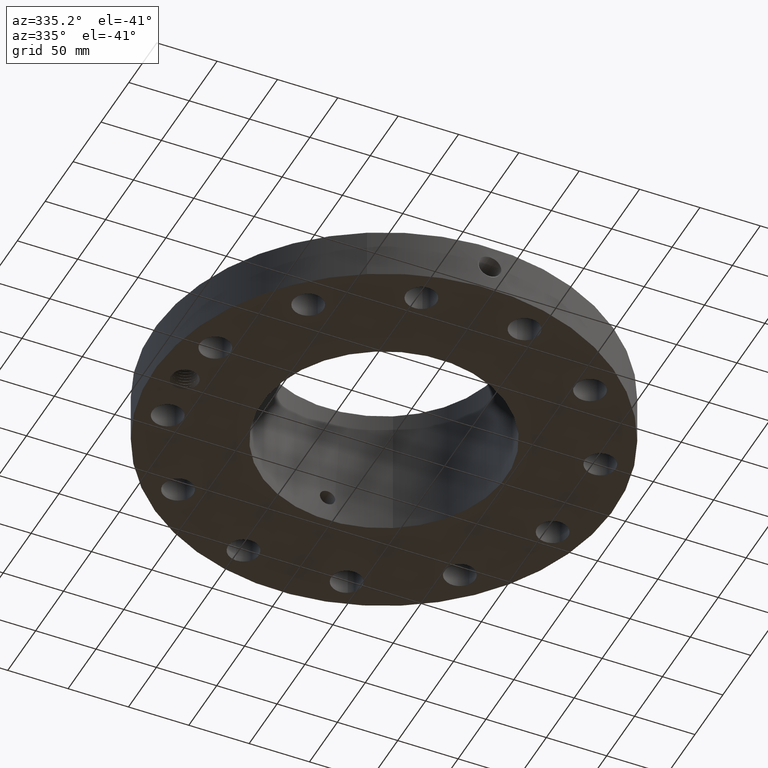
[diagram: clean part render]
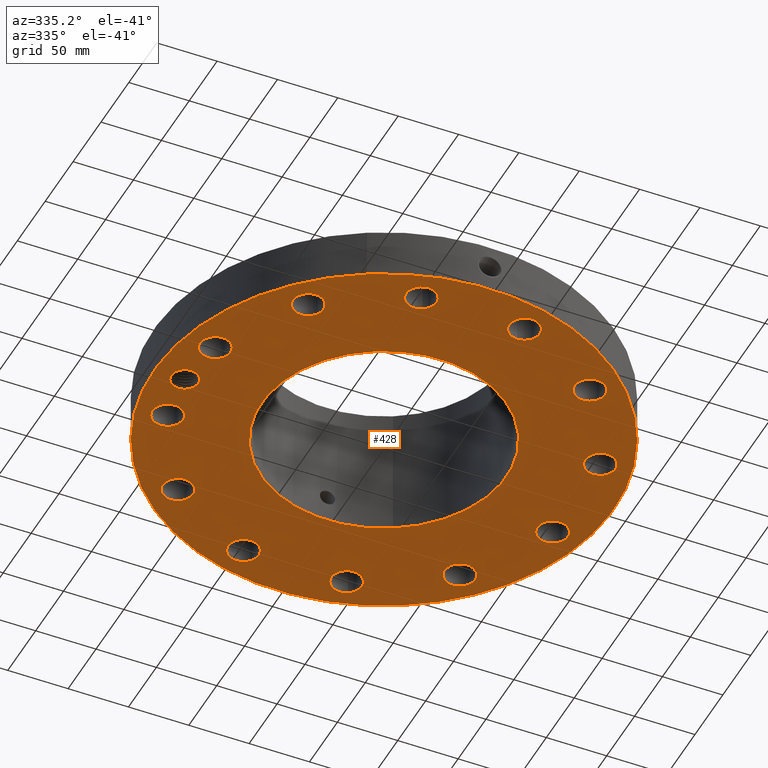
[diagram: same view with one face highlighted and labeled with its STEP entity id]
A machine part, auxiliary view. The second image highlights one B-rep face of the part: STEP entity #428.
In plain terms, the highlighted planar face has unit normal (0, 0, -1).
Its self-contained STEP definition (entity closure, byte-faithful):
#42=AXIS2_PLACEMENT_3D('Circle Axis2P3D',#40,#41,$) ;
#165=AXIS2_PLACEMENT_3D('Plane Axis2P3D',#162,#163,#164) ;
#169=AXIS2_PLACEMENT_3D('Circle Axis2P3D',#167,#168,$) ;
#178=AXIS2_PLACEMENT_3D('Circle Axis2P3D',#176,#177,$) ;
#187=AXIS2_PLACEMENT_3D('Circle Axis2P3D',#185,#186,$) ;
#196=AXIS2_PLACEMENT_3D('Circle Axis2P3D',#194,#195,$) ;
#205=AXIS2_PLACEMENT_3D('Circle Axis2P3D',#203,#204,$) ;
#214=AXIS2_PLACEMENT_3D('Circle Axis2P3D',#212,#213,$) ;
#223=AXIS2_PLACEMENT_3D('Circle Axis2P3D',#221,#222,$) ;
#232=AXIS2_PLACEMENT_3D('Circle Axis2P3D',#230,#231,$) ;
#241=AXIS2_PLACEMENT_3D('Circle Axis2P3D',#239,#240,$) ;
#250=AXIS2_PLACEMENT_3D('Circle Axis2P3D',#248,#249,$) ;
#259=AXIS2_PLACEMENT_3D('Circle Axis2P3D',#257,#258,$) ;
#268=AXIS2_PLACEMENT_3D('Circle Axis2P3D',#266,#267,$) ;
#277=AXIS2_PLACEMENT_3D('Circle Axis2P3D',#275,#276,$) ;
#286=AXIS2_PLACEMENT_3D('Circle Axis2P3D',#284,#285,$) ;
#295=AXIS2_PLACEMENT_3D('Circle Axis2P3D',#293,#294,$) ;
#304=AXIS2_PLACEMENT_3D('Circle Axis2P3D',#302,#303,$) ;
#313=AXIS2_PLACEMENT_3D('Circle Axis2P3D',#311,#312,$) ;
#322=AXIS2_PLACEMENT_3D('Circle Axis2P3D',#320,#321,$) ;
#331=AXIS2_PLACEMENT_3D('Circle Axis2P3D',#329,#330,$) ;
#340=AXIS2_PLACEMENT_3D('Circle Axis2P3D',#338,#339,$) ;
#349=AXIS2_PLACEMENT_3D('Circle Axis2P3D',#347,#348,$) ;
#358=AXIS2_PLACEMENT_3D('Circle Axis2P3D',#356,#357,$) ;
#367=AXIS2_PLACEMENT_3D('Circle Axis2P3D',#365,#366,$) ;
#376=AXIS2_PLACEMENT_3D('Circle Axis2P3D',#374,#375,$) ;
#385=AXIS2_PLACEMENT_3D('Circle Axis2P3D',#383,#384,$) ;
#394=AXIS2_PLACEMENT_3D('Circle Axis2P3D',#392,#393,$) ;
#403=AXIS2_PLACEMENT_3D('Circle Axis2P3D',#401,#402,$) ;
#412=AXIS2_PLACEMENT_3D('Circle Axis2P3D',#410,#411,$) ;
#421=AXIS2_PLACEMENT_3D('Circle Axis2P3D',#419,#420,$) ;
#40=CARTESIAN_POINT('Axis2P3D Location',(0.,0.,0.0600000000002)) ;
#44=CARTESIAN_POINT('Vertex',(-3.59569153955,-6.5818692142,0.0600000000002)) ;
#46=CARTESIAN_POINT('Vertex',(3.59569153955,6.5818692142,0.0600000000002)) ;
#162=CARTESIAN_POINT('Axis2P3D Location',(0.,3.99050000002,0.0600000000002)) ;
#167=CARTESIAN_POINT('Axis2P3D Location',(0.,0.,0.0600000000002)) ;
#176=CARTESIAN_POINT('Axis2P3D Location',(-6.50000000003,2.23792987641E-015,0.0600000000002)) ;
#180=CARTESIAN_POINT('Vertex',(-6.11139327788,-0.212296819878,0.0600000000002)) ;
#182=CARTESIAN_POINT('Vertex',(-6.88860672217,0.212296819878,0.0600000000002)) ;
#185=CARTESIAN_POINT('Axis2P3D Location',(-6.50000000003,2.23792987641E-015,0.0600000000002)) ;
#194=CARTESIAN_POINT('Axis2P3D Location',(6.2785178709,-1.68232379317,0.0600000000002)) ;
#198=CARTESIAN_POINT('Vertex',(6.71730915185,-1.92203656248,0.0600000000002)) ;
#200=CARTESIAN_POINT('Vertex',(5.83972658996,-1.44261102387,0.0600000000002)) ;
#203=CARTESIAN_POINT('Axis2P3D Location',(6.2785178709,-1.68232379317,0.0600000000002)) ;
#212=CARTESIAN_POINT('Axis2P3D Location',(0.,0.,0.0600000000002)) ;
#216=CARTESIAN_POINT('Vertex',(1.91314761181,3.50199321324,0.0600000000002)) ;
#218=CARTESIAN_POINT('Vertex',(-1.91314761181,-3.50199321324,0.0600000000002)) ;
#221=CARTESIAN_POINT('Axis2P3D Location',(0.,0.,0.0600000000002)) ;
#230=CARTESIAN_POINT('Axis2P3D Location',(4.59619407773,-4.59619407773,0.0600000000002)) ;
#234=CARTESIAN_POINT('Vertex',(4.33604606612,-4.16920108943,0.0600000000002)) ;
#236=CARTESIAN_POINT('Vertex',(4.85634208934,-5.02318706603,0.0600000000002)) ;
#239=CARTESIAN_POINT('Axis2P3D Location',(4.59619407773,-4.59619407773,0.0600000000002)) ;
#248=CARTESIAN_POINT('Axis2P3D Location',(1.68232379317,-6.2785178709,0.0600000000002)) ;
#252=CARTESIAN_POINT('Vertex',(1.67052550053,-5.77865708999,0.0600000000002)) ;
#254=CARTESIAN_POINT('Vertex',(1.69412208582,-6.77837865181,0.0600000000002)) ;
#257=CARTESIAN_POINT('Axis2P3D Location',(1.68232379317,-6.2785178709,0.0600000000002)) ;
#266=CARTESIAN_POINT('Axis2P3D Location',(-1.68232379317,-6.2785178709,0.0600000000002)) ;
#270=CARTESIAN_POINT('Vertex',(-1.44261102387,-5.83972658996,0.0600000000002)) ;
#272=CARTESIAN_POINT('Vertex',(-1.92203656248,-6.71730915185,0.0600000000002)) ;
#275=CARTESIAN_POINT('Axis2P3D Location',(-1.68232379317,-6.2785178709,0.0600000000002)) ;
#284=CARTESIAN_POINT('Axis2P3D Location',(-4.59619407773,-4.59619407773,0.0600000000002)) ;
#288=CARTESIAN_POINT('Vertex',(-4.16920108943,-4.33604606612,0.0600000000002)) ;
#290=CARTESIAN_POINT('Vertex',(-5.02318706603,-4.85634208934,0.0600000000002)) ;
#293=CARTESIAN_POINT('Axis2P3D Location',(-4.59619407773,-4.59619407773,0.0600000000002)) ;
#302=CARTESIAN_POINT('Axis2P3D Location',(-6.2785178709,-1.68232379317,0.0600000000002)) ;
#306=CARTESIAN_POINT('Vertex',(-5.77865708999,-1.67052550053,0.0600000000002)) ;
#308=CARTESIAN_POINT('Vertex',(-6.77837865181,-1.69412208582,0.0600000000002)) ;
#311=CARTESIAN_POINT('Axis2P3D Location',(-6.2785178709,-1.68232379317,0.0600000000002)) ;
#320=CARTESIAN_POINT('Axis2P3D Location',(-6.2785178709,1.68232379317,0.0600000000002)) ;
#324=CARTESIAN_POINT('Vertex',(-5.83972658996,1.44261102387,0.0600000000002)) ;
#326=CARTESIAN_POINT('Vertex',(-6.71730915185,1.92203656248,0.0600000000002)) ;
#329=CARTESIAN_POINT('Axis2P3D Location',(-6.2785178709,1.68232379317,0.0600000000002)) ;
#338=CARTESIAN_POINT('Axis2P3D Location',(-4.59619407773,4.59619407773,0.0600000000002)) ;
#342=CARTESIAN_POINT('Vertex',(-4.33604606612,4.16920108943,0.0600000000002)) ;
#344=CARTESIAN_POINT('Vertex',(-4.85634208934,5.02318706603,0.0600000000002)) ;
#347=CARTESIAN_POINT('Axis2P3D Location',(-4.59619407773,4.59619407773,0.0600000000002)) ;
#356=CARTESIAN_POINT('Axis2P3D Location',(-1.68232379317,6.2785178709,0.0600000000002)) ;
#360=CARTESIAN_POINT('Vertex',(-1.67052550053,5.77865708999,0.0600000000002)) ;
#362=CARTESIAN_POINT('Vertex',(-1.69412208582,6.77837865181,0.0600000000002)) ;
#365=CARTESIAN_POINT('Axis2P3D Location',(-1.68232379317,6.2785178709,0.0600000000002)) ;
#374=CARTESIAN_POINT('Axis2P3D Location',(1.68232379317,6.2785178709,0.0600000000002)) ;
#378=CARTESIAN_POINT('Vertex',(1.44261102387,5.83972658996,0.0600000000002)) ;
#380=CARTESIAN_POINT('Vertex',(1.92203656248,6.71730915185,0.0600000000002)) ;
#383=CARTESIAN_POINT('Axis2P3D Location',(1.68232379317,6.2785178709,0.0600000000002)) ;
#392=CARTESIAN_POINT('Axis2P3D Location',(4.59619407773,4.59619407773,0.0600000000002)) ;
#396=CARTESIAN_POINT('Vertex',(4.16920108943,4.33604606612,0.0600000000002)) ;
#398=CARTESIAN_POINT('Vertex',(5.02318706603,4.85634208934,0.0600000000002)) ;
#401=CARTESIAN_POINT('Axis2P3D Location',(4.59619407773,4.59619407773,0.0600000000002)) ;
#410=CARTESIAN_POINT('Axis2P3D Location',(6.2785178709,1.68232379317,0.0600000000002)) ;
#414=CARTESIAN_POINT('Vertex',(5.77865708999,1.67052550053,0.0600000000002)) ;
#416=CARTESIAN_POINT('Vertex',(6.77837865181,1.69412208582,0.0600000000002)) ;
#419=CARTESIAN_POINT('Axis2P3D Location',(6.2785178709,1.68232379317,0.0600000000002)) ;
#41=DIRECTION('Axis2P3D Direction',(0.,0.,-0.0393700787402)) ;
#163=DIRECTION('Axis2P3D Direction',(0.,0.,-0.0393700787402)) ;
#164=DIRECTION('Axis2P3D XDirection',(0.0393700787402,0.,0.)) ;
#168=DIRECTION('Axis2P3D Direction',(0.,0.,-0.0393700787402)) ;
#177=DIRECTION('Axis2P3D Direction',(0.,0.,-0.0393700787402)) ;
#186=DIRECTION('Axis2P3D Direction',(0.,0.,-0.0393700787402)) ;
#195=DIRECTION('Axis2P3D Direction',(0.,0.,-0.0393700787402)) ;
#204=DIRECTION('Axis2P3D Direction',(0.,0.,-0.0393700787402)) ;
#213=DIRECTION('Axis2P3D Direction',(0.,0.,-0.0393700787402)) ;
#222=DIRECTION('Axis2P3D Direction',(0.,0.,-0.0393700787402)) ;
#231=DIRECTION('Axis2P3D Direction',(0.,0.,-0.0393700787402)) ;
#240=DIRECTION('Axis2P3D Direction',(0.,0.,-0.0393700787402)) ;
#249=DIRECTION('Axis2P3D Direction',(0.,0.,-0.0393700787402)) ;
#258=DIRECTION('Axis2P3D Direction',(0.,0.,-0.0393700787402)) ;
#267=DIRECTION('Axis2P3D Direction',(0.,0.,-0.0393700787402)) ;
#276=DIRECTION('Axis2P3D Direction',(0.,0.,-0.0393700787402)) ;
#285=DIRECTION('Axis2P3D Direction',(0.,0.,-0.0393700787402)) ;
#294=DIRECTION('Axis2P3D Direction',(0.,0.,-0.0393700787402)) ;
#303=DIRECTION('Axis2P3D Direction',(0.,0.,-0.0393700787402)) ;
#312=DIRECTION('Axis2P3D Direction',(0.,0.,-0.0393700787402)) ;
#321=DIRECTION('Axis2P3D Direction',(0.,0.,-0.0393700787402)) ;
#330=DIRECTION('Axis2P3D Direction',(0.,0.,-0.0393700787402)) ;
#339=DIRECTION('Axis2P3D Direction',(0.,0.,-0.0393700787402)) ;
#348=DIRECTION('Axis2P3D Direction',(0.,0.,-0.0393700787402)) ;
#357=DIRECTION('Axis2P3D Direction',(0.,0.,-0.0393700787402)) ;
#366=DIRECTION('Axis2P3D Direction',(0.,0.,-0.0393700787402)) ;
#375=DIRECTION('Axis2P3D Direction',(0.,0.,-0.0393700787402)) ;
#384=DIRECTION('Axis2P3D Direction',(0.,0.,-0.0393700787402)) ;
#393=DIRECTION('Axis2P3D Direction',(0.,0.,-0.0393700787402)) ;
#402=DIRECTION('Axis2P3D Direction',(0.,0.,-0.0393700787402)) ;
#411=DIRECTION('Axis2P3D Direction',(0.,0.,-0.0393700787402)) ;
#420=DIRECTION('Axis2P3D Direction',(0.,0.,-0.0393700787402)) ;
#173=ORIENTED_EDGE('',*,*,#48,.T.) ;
#174=ORIENTED_EDGE('',*,*,#171,.T.) ;
#191=ORIENTED_EDGE('',*,*,#184,.F.) ;
#192=ORIENTED_EDGE('',*,*,#189,.F.) ;
#209=ORIENTED_EDGE('',*,*,#202,.F.) ;
#210=ORIENTED_EDGE('',*,*,#207,.F.) ;
#227=ORIENTED_EDGE('',*,*,#220,.F.) ;
#228=ORIENTED_EDGE('',*,*,#225,.F.) ;
#245=ORIENTED_EDGE('',*,*,#238,.F.) ;
#246=ORIENTED_EDGE('',*,*,#243,.F.) ;
#263=ORIENTED_EDGE('',*,*,#256,.F.) ;
#264=ORIENTED_EDGE('',*,*,#261,.F.) ;
#281=ORIENTED_EDGE('',*,*,#274,.F.) ;
#282=ORIENTED_EDGE('',*,*,#279,.F.) ;
#299=ORIENTED_EDGE('',*,*,#292,.F.) ;
#300=ORIENTED_EDGE('',*,*,#297,.F.) ;
#317=ORIENTED_EDGE('',*,*,#310,.F.) ;
#318=ORIENTED_EDGE('',*,*,#315,.F.) ;
#335=ORIENTED_EDGE('',*,*,#328,.F.) ;
#336=ORIENTED_EDGE('',*,*,#333,.F.) ;
#353=ORIENTED_EDGE('',*,*,#346,.F.) ;
#354=ORIENTED_EDGE('',*,*,#351,.F.) ;
#371=ORIENTED_EDGE('',*,*,#364,.F.) ;
#372=ORIENTED_EDGE('',*,*,#369,.F.) ;
#389=ORIENTED_EDGE('',*,*,#382,.F.) ;
#390=ORIENTED_EDGE('',*,*,#387,.F.) ;
#407=ORIENTED_EDGE('',*,*,#400,.F.) ;
#408=ORIENTED_EDGE('',*,*,#405,.F.) ;
#425=ORIENTED_EDGE('',*,*,#418,.F.) ;
#426=ORIENTED_EDGE('',*,*,#423,.F.) ;
#193=FACE_BOUND('',#190,.T.) ;
#211=FACE_BOUND('',#208,.T.) ;
#229=FACE_BOUND('',#226,.T.) ;
#247=FACE_BOUND('',#244,.T.) ;
#265=FACE_BOUND('',#262,.T.) ;
#283=FACE_BOUND('',#280,.T.) ;
#301=FACE_BOUND('',#298,.T.) ;
#319=FACE_BOUND('',#316,.T.) ;
#337=FACE_BOUND('',#334,.T.) ;
#355=FACE_BOUND('',#352,.T.) ;
#373=FACE_BOUND('',#370,.T.) ;
#391=FACE_BOUND('',#388,.T.) ;
#409=FACE_BOUND('',#406,.T.) ;
#427=FACE_BOUND('',#424,.T.) ;
#428=ADVANCED_FACE('PartBody',(#175,#193,#211,#229,#247,#265,#283,#301,#319,#337,#355,#373,#391,#409,#427),#166,.T.) ;
#43=CIRCLE('generated circle',#42,7.50000000003) ;
#170=CIRCLE('generated circle',#169,7.50000000003) ;
#179=CIRCLE('generated circle',#178,0.442815000002) ;
#188=CIRCLE('generated circle',#187,0.442815000002) ;
#197=CIRCLE('generated circle',#196,0.500000000002) ;
#206=CIRCLE('generated circle',#205,0.500000000002) ;
#215=CIRCLE('generated circle',#214,3.99050000002) ;
#224=CIRCLE('generated circle',#223,3.99050000002) ;
#233=CIRCLE('generated circle',#232,0.500000000002) ;
#242=CIRCLE('generated circle',#241,0.500000000002) ;
#251=CIRCLE('generated circle',#250,0.500000000002) ;
#260=CIRCLE('generated circle',#259,0.500000000002) ;
#269=CIRCLE('generated circle',#268,0.500000000002) ;
#278=CIRCLE('generated circle',#277,0.500000000002) ;
#287=CIRCLE('generated circle',#286,0.500000000002) ;
#296=CIRCLE('generated circle',#295,0.500000000002) ;
#305=CIRCLE('generated circle',#304,0.500000000002) ;
#314=CIRCLE('generated circle',#313,0.500000000002) ;
#323=CIRCLE('generated circle',#322,0.500000000002) ;
#332=CIRCLE('generated circle',#331,0.500000000002) ;
#341=CIRCLE('generated circle',#340,0.500000000002) ;
#350=CIRCLE('generated circle',#349,0.500000000002) ;
#359=CIRCLE('generated circle',#358,0.500000000002) ;
#368=CIRCLE('generated circle',#367,0.500000000002) ;
#377=CIRCLE('generated circle',#376,0.500000000002) ;
#386=CIRCLE('generated circle',#385,0.500000000002) ;
#395=CIRCLE('generated circle',#394,0.500000000002) ;
#404=CIRCLE('generated circle',#403,0.500000000002) ;
#413=CIRCLE('generated circle',#412,0.500000000002) ;
#422=CIRCLE('generated circle',#421,0.500000000002) ;
#48=EDGE_CURVE('',#45,#47,#43,.T.) ;
#171=EDGE_CURVE('',#47,#45,#170,.T.) ;
#184=EDGE_CURVE('',#181,#183,#179,.T.) ;
#189=EDGE_CURVE('',#183,#181,#188,.T.) ;
#202=EDGE_CURVE('',#199,#201,#197,.T.) ;
#207=EDGE_CURVE('',#201,#199,#206,.T.) ;
#220=EDGE_CURVE('',#217,#219,#215,.T.) ;
#225=EDGE_CURVE('',#219,#217,#224,.T.) ;
#238=EDGE_CURVE('',#235,#237,#233,.T.) ;
#243=EDGE_CURVE('',#237,#235,#242,.T.) ;
#256=EDGE_CURVE('',#253,#255,#251,.T.) ;
#261=EDGE_CURVE('',#255,#253,#260,.T.) ;
#274=EDGE_CURVE('',#271,#273,#269,.T.) ;
#279=EDGE_CURVE('',#273,#271,#278,.T.) ;
#292=EDGE_CURVE('',#289,#291,#287,.T.) ;
#297=EDGE_CURVE('',#291,#289,#296,.T.) ;
#310=EDGE_CURVE('',#307,#309,#305,.T.) ;
#315=EDGE_CURVE('',#309,#307,#314,.T.) ;
#328=EDGE_CURVE('',#325,#327,#323,.T.) ;
#333=EDGE_CURVE('',#327,#325,#332,.T.) ;
#346=EDGE_CURVE('',#343,#345,#341,.T.) ;
#351=EDGE_CURVE('',#345,#343,#350,.T.) ;
#364=EDGE_CURVE('',#361,#363,#359,.T.) ;
#369=EDGE_CURVE('',#363,#361,#368,.T.) ;
#382=EDGE_CURVE('',#379,#381,#377,.T.) ;
#387=EDGE_CURVE('',#381,#379,#386,.T.) ;
#400=EDGE_CURVE('',#397,#399,#395,.T.) ;
#405=EDGE_CURVE('',#399,#397,#404,.T.) ;
#418=EDGE_CURVE('',#415,#417,#413,.T.) ;
#423=EDGE_CURVE('',#417,#415,#422,.T.) ;
#172=EDGE_LOOP('',(#173,#174)) ;
#190=EDGE_LOOP('',(#191,#192)) ;
#208=EDGE_LOOP('',(#209,#210)) ;
#226=EDGE_LOOP('',(#227,#228)) ;
#244=EDGE_LOOP('',(#245,#246)) ;
#262=EDGE_LOOP('',(#263,#264)) ;
#280=EDGE_LOOP('',(#281,#282)) ;
#298=EDGE_LOOP('',(#299,#300)) ;
#316=EDGE_LOOP('',(#317,#318)) ;
#334=EDGE_LOOP('',(#335,#336)) ;
#352=EDGE_LOOP('',(#353,#354)) ;
#370=EDGE_LOOP('',(#371,#372)) ;
#388=EDGE_LOOP('',(#389,#390)) ;
#406=EDGE_LOOP('',(#407,#408)) ;
#424=EDGE_LOOP('',(#425,#426)) ;
#175=FACE_OUTER_BOUND('',#172,.T.) ;
#166=PLANE('',#165) ;
#45=VERTEX_POINT('',#44) ;
#47=VERTEX_POINT('',#46) ;
#181=VERTEX_POINT('',#180) ;
#183=VERTEX_POINT('',#182) ;
#199=VERTEX_POINT('',#198) ;
#201=VERTEX_POINT('',#200) ;
#217=VERTEX_POINT('',#216) ;
#219=VERTEX_POINT('',#218) ;
#235=VERTEX_POINT('',#234) ;
#237=VERTEX_POINT('',#236) ;
#253=VERTEX_POINT('',#252) ;
#255=VERTEX_POINT('',#254) ;
#271=VERTEX_POINT('',#270) ;
#273=VERTEX_POINT('',#272) ;
#289=VERTEX_POINT('',#288) ;
#291=VERTEX_POINT('',#290) ;
#307=VERTEX_POINT('',#306) ;
#309=VERTEX_POINT('',#308) ;
#325=VERTEX_POINT('',#324) ;
#327=VERTEX_POINT('',#326) ;
#343=VERTEX_POINT('',#342) ;
#345=VERTEX_POINT('',#344) ;
#361=VERTEX_POINT('',#360) ;
#363=VERTEX_POINT('',#362) ;
#379=VERTEX_POINT('',#378) ;
#381=VERTEX_POINT('',#380) ;
#397=VERTEX_POINT('',#396) ;
#399=VERTEX_POINT('',#398) ;
#415=VERTEX_POINT('',#414) ;
#417=VERTEX_POINT('',#416) ;